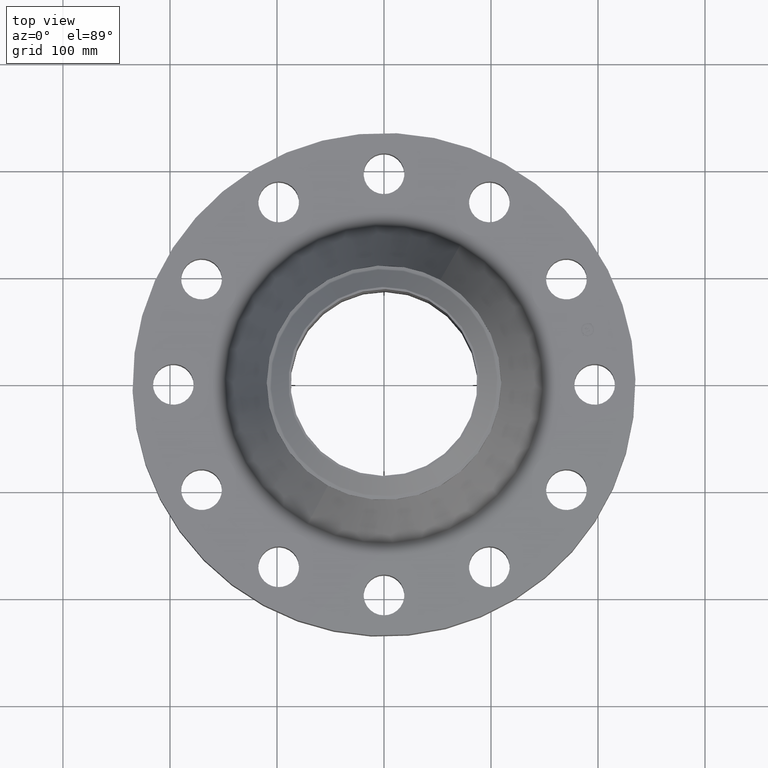
[diagram: clean part render]
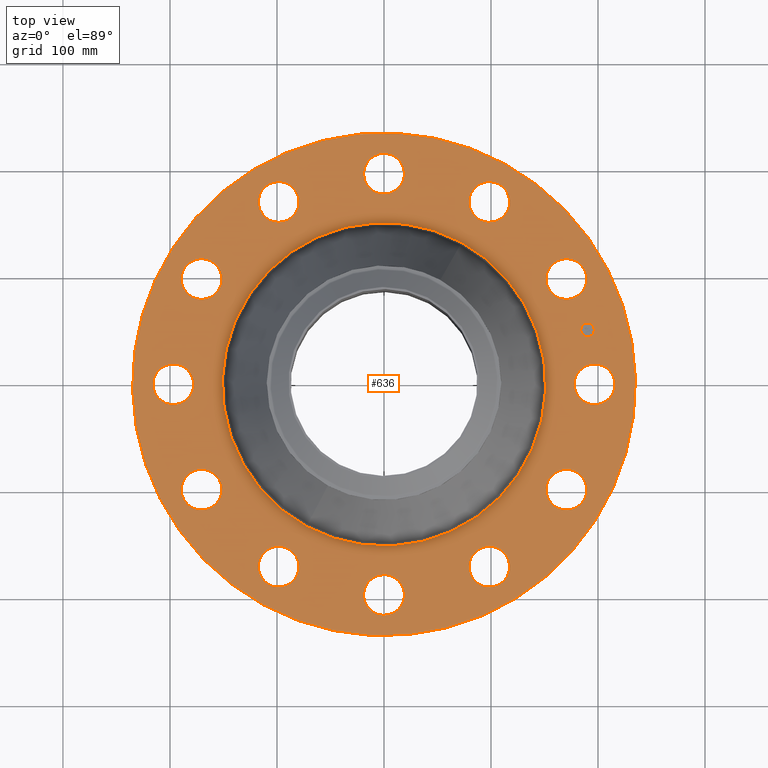
[diagram: same view with one face highlighted and labeled with its STEP entity id]
A machine part, top view. The second image highlights one B-rep face of the part: STEP entity #636.
In plain terms, the highlighted planar face has unit normal (0, 0, -1).
Its self-contained STEP definition (entity closure, byte-faithful):
#65=AXIS2_PLACEMENT_3D('Circle Axis2P3D',#63,#64,$) ;
#378=AXIS2_PLACEMENT_3D('Plane Axis2P3D',#375,#376,#377) ;
#382=AXIS2_PLACEMENT_3D('Circle Axis2P3D',#380,#381,$) ;
#391=AXIS2_PLACEMENT_3D('Circle Axis2P3D',#389,#390,$) ;
#404=AXIS2_PLACEMENT_3D('Circle Axis2P3D',#402,#403,$) ;
#413=AXIS2_PLACEMENT_3D('Circle Axis2P3D',#411,#412,$) ;
#422=AXIS2_PLACEMENT_3D('Circle Axis2P3D',#420,#421,$) ;
#431=AXIS2_PLACEMENT_3D('Circle Axis2P3D',#429,#430,$) ;
#440=AXIS2_PLACEMENT_3D('Circle Axis2P3D',#438,#439,$) ;
#449=AXIS2_PLACEMENT_3D('Circle Axis2P3D',#447,#448,$) ;
#458=AXIS2_PLACEMENT_3D('Circle Axis2P3D',#456,#457,$) ;
#467=AXIS2_PLACEMENT_3D('Circle Axis2P3D',#465,#466,$) ;
#476=AXIS2_PLACEMENT_3D('Circle Axis2P3D',#474,#475,$) ;
#485=AXIS2_PLACEMENT_3D('Circle Axis2P3D',#483,#484,$) ;
#494=AXIS2_PLACEMENT_3D('Circle Axis2P3D',#492,#493,$) ;
#503=AXIS2_PLACEMENT_3D('Circle Axis2P3D',#501,#502,$) ;
#512=AXIS2_PLACEMENT_3D('Circle Axis2P3D',#510,#511,$) ;
#521=AXIS2_PLACEMENT_3D('Circle Axis2P3D',#519,#520,$) ;
#530=AXIS2_PLACEMENT_3D('Circle Axis2P3D',#528,#529,$) ;
#539=AXIS2_PLACEMENT_3D('Circle Axis2P3D',#537,#538,$) ;
#548=AXIS2_PLACEMENT_3D('Circle Axis2P3D',#546,#547,$) ;
#557=AXIS2_PLACEMENT_3D('Circle Axis2P3D',#555,#556,$) ;
#566=AXIS2_PLACEMENT_3D('Circle Axis2P3D',#564,#565,$) ;
#575=AXIS2_PLACEMENT_3D('Circle Axis2P3D',#573,#574,$) ;
#584=AXIS2_PLACEMENT_3D('Circle Axis2P3D',#582,#583,$) ;
#593=AXIS2_PLACEMENT_3D('Circle Axis2P3D',#591,#592,$) ;
#602=AXIS2_PLACEMENT_3D('Circle Axis2P3D',#600,#601,$) ;
#611=AXIS2_PLACEMENT_3D('Circle Axis2P3D',#609,#610,$) ;
#620=AXIS2_PLACEMENT_3D('Circle Axis2P3D',#618,#619,$) ;
#629=AXIS2_PLACEMENT_3D('Circle Axis2P3D',#627,#628,$) ;
#46=CARTESIAN_POINT('Vertex',(7.09181307861,0.359569153955,2.5)) ;
#60=CARTESIAN_POINT('Vertex',(8.40818692145,-0.359569153955,2.5)) ;
#63=CARTESIAN_POINT('Axis2P3D Location',(7.75000000003,0.,2.5)) ;
#94=CARTESIAN_POINT('Control Point',(8.40818692145,-0.359569153955,2.5)) ;
#95=CARTESIAN_POINT('Control Point',(8.35170593082,-0.462956913806,2.5)) ;
#96=CARTESIAN_POINT('Control Point',(8.27492480102,-0.555254657081,2.5)) ;
#97=CARTESIAN_POINT('Control Point',(8.18073066337,-0.631129841292,2.5)) ;
#98=CARTESIAN_POINT('Control Point',(7.96766718853,-0.741858414487,2.5)) ;
#99=CARTESIAN_POINT('Control Point',(7.72855355312,-0.763802219702,2.5)) ;
#100=CARTESIAN_POINT('Control Point',(7.60829638235,-0.750848763496,2.5)) ;
#101=CARTESIAN_POINT('Control Point',(7.3793408295,-0.678487060596,2.5)) ;
#102=CARTESIAN_POINT('Control Point',(7.19474534295,-0.524924800992,2.50000000001)) ;
#103=CARTESIAN_POINT('Control Point',(7.11887015874,-0.430730663336,2.50000000001)) ;
#104=CARTESIAN_POINT('Control Point',(7.00814158554,-0.217667188504,2.50000000001)) ;
#105=CARTESIAN_POINT('Control Point',(6.98619778033,0.0214464469131,2.50000000001)) ;
#106=CARTESIAN_POINT('Control Point',(6.99915123653,0.141703617676,2.50000000001)) ;
#107=CARTESIAN_POINT('Control Point',(7.03533208798,0.256181394104,2.50000000001)) ;
#108=CARTESIAN_POINT('Control Point',(7.09181307861,0.359569153955,2.50000000001)) ;
#375=CARTESIAN_POINT('Axis2P3D Location',(0.,9.25000000004,2.50000000001)) ;
#380=CARTESIAN_POINT('Axis2P3D Location',(0.,-3.99918068914E-012,2.50000000001)) ;
#384=CARTESIAN_POINT('Vertex',(4.43468623211,8.11763869752,2.49999999999)) ;
#386=CARTESIAN_POINT('Vertex',(-4.43468623211,-8.11763869752,2.49999999999)) ;
#389=CARTESIAN_POINT('Axis2P3D Location',(0.,-3.99918068914E-012,2.50000000001)) ;
#402=CARTESIAN_POINT('Axis2P3D Location',(-1.1189649382E-015,-3.99918068914E-012,2.50000000001)) ;
#406=CARTESIAN_POINT('Vertex',(-2.85211672578,-5.22076464744,2.50000000001)) ;
#408=CARTESIAN_POINT('Vertex',(2.85211672579,5.22076464744,2.50000000001)) ;
#411=CARTESIAN_POINT('Axis2P3D Location',(1.1189649382E-015,-3.99918068914E-012,2.50000000001)) ;
#420=CARTESIAN_POINT('Axis2P3D Location',(6.71169687938,-3.87500000004,2.50000000001)) ;
#424=CARTESIAN_POINT('Vertex',(7.10191889681,-4.51548948246,2.50000000001)) ;
#426=CARTESIAN_POINT('Vertex',(6.32147486195,-3.23451051757,2.5)) ;
#429=CARTESIAN_POINT('Axis2P3D Location',(6.71169687938,-3.87500000004,2.50000000001)) ;
#438=CARTESIAN_POINT('Axis2P3D Location',(3.87499999999,-6.71169687939,2.50000000001)) ;
#442=CARTESIAN_POINT('Vertex',(3.89269743899,-7.46148805076,2.50000000001)) ;
#444=CARTESIAN_POINT('Vertex',(3.85730256105,-5.96190570799,2.5)) ;
#447=CARTESIAN_POINT('Axis2P3D Location',(3.87499999999,-6.71169687939,2.50000000001)) ;
#456=CARTESIAN_POINT('Axis2P3D Location',(1.281158906E-011,-7.75000000003,2.50000000001)) ;
#460=CARTESIAN_POINT('Vertex',(-0.359569153955,-8.40818692145,2.5)) ;
#462=CARTESIAN_POINT('Vertex',(0.359569153955,-7.09181307861,2.5)) ;
#465=CARTESIAN_POINT('Axis2P3D Location',(-1.281158906E-011,-7.75000000002,2.50000000001)) ;
#474=CARTESIAN_POINT('Axis2P3D Location',(-3.87500000003,-6.71169687936,2.50000000001)) ;
#478=CARTESIAN_POINT('Vertex',(-4.51548948246,-7.10191889674,2.50000000001)) ;
#480=CARTESIAN_POINT('Vertex',(-3.23451051757,-6.32147486195,2.5)) ;
#483=CARTESIAN_POINT('Axis2P3D Location',(-3.87500000001,-6.71169687939,2.50000000001)) ;
#492=CARTESIAN_POINT('Axis2P3D Location',(-6.71169687939,-3.875,2.50000000001)) ;
#496=CARTESIAN_POINT('Vertex',(-7.46148805075,-3.892697439,2.50000000001)) ;
#498=CARTESIAN_POINT('Vertex',(-5.96190570799,-3.85730256105,2.5)) ;
#501=CARTESIAN_POINT('Axis2P3D Location',(-6.71169687939,-3.875,2.50000000001)) ;
#510=CARTESIAN_POINT('Axis2P3D Location',(-7.75000000003,-1.68113292316E-011,2.50000000001)) ;
#514=CARTESIAN_POINT('Vertex',(-8.40818692145,0.359569153955,2.5)) ;
#516=CARTESIAN_POINT('Vertex',(-7.09181307861,-0.359569153955,2.5)) ;
#519=CARTESIAN_POINT('Axis2P3D Location',(-7.75000000002,8.8129678533E-012,2.50000000001)) ;
#528=CARTESIAN_POINT('Axis2P3D Location',(-6.71169687938,3.87500000003,2.50000000001)) ;
#532=CARTESIAN_POINT('Vertex',(-7.10191889681,4.51548948246,2.50000000001)) ;
#534=CARTESIAN_POINT('Vertex',(-6.32147486195,3.23451051757,2.5)) ;
#537=CARTESIAN_POINT('Axis2P3D Location',(-6.71169687935,3.87500000005,2.50000000001)) ;
#546=CARTESIAN_POINT('Axis2P3D Location',(-3.87499999999,6.71169687939,2.50000000001)) ;
#550=CARTESIAN_POINT('Vertex',(-3.89269743899,7.46148805075,2.50000000001)) ;
#552=CARTESIAN_POINT('Vertex',(-3.85730256105,5.96190570799,2.5)) ;
#555=CARTESIAN_POINT('Axis2P3D Location',(-3.87499999999,6.71169687939,2.50000000001)) ;
#564=CARTESIAN_POINT('Axis2P3D Location',(-4.36652988483E-011,7.75000000004,2.50000000001)) ;
#568=CARTESIAN_POINT('Vertex',(0.359569153955,8.40818692145,2.5)) ;
#570=CARTESIAN_POINT('Vertex',(-0.359569153955,7.09181307861,2.5)) ;
#573=CARTESIAN_POINT('Axis2P3D Location',(1.281158906E-011,7.75000000001,2.50000000001)) ;
#582=CARTESIAN_POINT('Axis2P3D Location',(3.87500000004,6.71169687937,2.50000000001)) ;
#586=CARTESIAN_POINT('Vertex',(4.51548948246,7.1019188968,2.50000000001)) ;
#588=CARTESIAN_POINT('Vertex',(3.23451051757,6.32147486195,2.5)) ;
#591=CARTESIAN_POINT('Axis2P3D Location',(3.87500000004,6.71169687937,2.50000000001)) ;
#600=CARTESIAN_POINT('Axis2P3D Location',(6.71169687939,3.87499999999,2.50000000001)) ;
#604=CARTESIAN_POINT('Vertex',(7.46148805075,3.89269743899,2.50000000001)) ;
#606=CARTESIAN_POINT('Vertex',(5.96190570799,3.85730256105,2.5)) ;
#609=CARTESIAN_POINT('Axis2P3D Location',(6.71169687939,3.87499999999,2.50000000001)) ;
#618=CARTESIAN_POINT('Axis2P3D Location',(7.48592515377,2.00584759954,2.50000000001)) ;
#622=CARTESIAN_POINT('Vertex',(7.42186744008,2.24491424154,2.50000000001)) ;
#624=CARTESIAN_POINT('Vertex',(7.54998286746,1.76678095753,2.50000000001)) ;
#627=CARTESIAN_POINT('Axis2P3D Location',(7.48592515379,2.00584759954,2.50000000001)) ;
#64=DIRECTION('Axis2P3D Direction',(0.,-0.,-0.0393700787402)) ;
#376=DIRECTION('Axis2P3D Direction',(0.,0.,-0.0393700787402)) ;
#377=DIRECTION('Axis2P3D XDirection',(0.0393700787402,0.,0.)) ;
#381=DIRECTION('Axis2P3D Direction',(0.,0.,-0.0393700787402)) ;
#390=DIRECTION('Axis2P3D Direction',(0.,0.,-0.0393700787402)) ;
#403=DIRECTION('Axis2P3D Direction',(0.,0.,-0.0393700787402)) ;
#412=DIRECTION('Axis2P3D Direction',(0.,0.,-0.0393700787402)) ;
#421=DIRECTION('Axis2P3D Direction',(0.,0.,-0.0393700787402)) ;
#430=DIRECTION('Axis2P3D Direction',(0.,0.,-0.0393700787402)) ;
#439=DIRECTION('Axis2P3D Direction',(0.,0.,-0.0393700787402)) ;
#448=DIRECTION('Axis2P3D Direction',(0.,0.,-0.0393700787402)) ;
#457=DIRECTION('Axis2P3D Direction',(0.,0.,-0.0393700787402)) ;
#466=DIRECTION('Axis2P3D Direction',(0.,0.,-0.0393700787402)) ;
#475=DIRECTION('Axis2P3D Direction',(0.,0.,-0.0393700787402)) ;
#484=DIRECTION('Axis2P3D Direction',(0.,0.,-0.0393700787402)) ;
#493=DIRECTION('Axis2P3D Direction',(0.,0.,-0.0393700787402)) ;
#502=DIRECTION('Axis2P3D Direction',(0.,0.,-0.0393700787402)) ;
#511=DIRECTION('Axis2P3D Direction',(0.,0.,-0.0393700787402)) ;
#520=DIRECTION('Axis2P3D Direction',(0.,0.,-0.0393700787402)) ;
#529=DIRECTION('Axis2P3D Direction',(0.,0.,-0.0393700787402)) ;
#538=DIRECTION('Axis2P3D Direction',(0.,0.,-0.0393700787402)) ;
#547=DIRECTION('Axis2P3D Direction',(0.,0.,-0.0393700787402)) ;
#556=DIRECTION('Axis2P3D Direction',(0.,0.,-0.0393700787402)) ;
#565=DIRECTION('Axis2P3D Direction',(0.,0.,-0.0393700787402)) ;
#574=DIRECTION('Axis2P3D Direction',(0.,0.,-0.0393700787402)) ;
#583=DIRECTION('Axis2P3D Direction',(0.,0.,-0.0393700787402)) ;
#592=DIRECTION('Axis2P3D Direction',(0.,0.,-0.0393700787402)) ;
#601=DIRECTION('Axis2P3D Direction',(0.,0.,-0.0393700787402)) ;
#610=DIRECTION('Axis2P3D Direction',(0.,0.,-0.0393700787402)) ;
#619=DIRECTION('Axis2P3D Direction',(0.,0.,-0.0393700787402)) ;
#628=DIRECTION('Axis2P3D Direction',(0.,0.,-0.0393700787402)) ;
#395=ORIENTED_EDGE('',*,*,#388,.F.) ;
#396=ORIENTED_EDGE('',*,*,#393,.F.) ;
#399=ORIENTED_EDGE('',*,*,#67,.T.) ;
#400=ORIENTED_EDGE('',*,*,#109,.T.) ;
#417=ORIENTED_EDGE('',*,*,#410,.T.) ;
#418=ORIENTED_EDGE('',*,*,#415,.T.) ;
#435=ORIENTED_EDGE('',*,*,#428,.T.) ;
#436=ORIENTED_EDGE('',*,*,#433,.T.) ;
#453=ORIENTED_EDGE('',*,*,#446,.T.) ;
#454=ORIENTED_EDGE('',*,*,#451,.T.) ;
#471=ORIENTED_EDGE('',*,*,#464,.T.) ;
#472=ORIENTED_EDGE('',*,*,#469,.T.) ;
#489=ORIENTED_EDGE('',*,*,#482,.T.) ;
#490=ORIENTED_EDGE('',*,*,#487,.T.) ;
#507=ORIENTED_EDGE('',*,*,#500,.T.) ;
#508=ORIENTED_EDGE('',*,*,#505,.T.) ;
#525=ORIENTED_EDGE('',*,*,#518,.T.) ;
#526=ORIENTED_EDGE('',*,*,#523,.T.) ;
#543=ORIENTED_EDGE('',*,*,#536,.T.) ;
#544=ORIENTED_EDGE('',*,*,#541,.T.) ;
#561=ORIENTED_EDGE('',*,*,#554,.T.) ;
#562=ORIENTED_EDGE('',*,*,#559,.T.) ;
#579=ORIENTED_EDGE('',*,*,#572,.T.) ;
#580=ORIENTED_EDGE('',*,*,#577,.T.) ;
#597=ORIENTED_EDGE('',*,*,#590,.T.) ;
#598=ORIENTED_EDGE('',*,*,#595,.T.) ;
#615=ORIENTED_EDGE('',*,*,#608,.T.) ;
#616=ORIENTED_EDGE('',*,*,#613,.T.) ;
#633=ORIENTED_EDGE('',*,*,#626,.T.) ;
#634=ORIENTED_EDGE('',*,*,#631,.T.) ;
#401=FACE_BOUND('',#398,.T.) ;
#419=FACE_BOUND('',#416,.T.) ;
#437=FACE_BOUND('',#434,.T.) ;
#455=FACE_BOUND('',#452,.T.) ;
#473=FACE_BOUND('',#470,.T.) ;
#491=FACE_BOUND('',#488,.T.) ;
#509=FACE_BOUND('',#506,.T.) ;
#527=FACE_BOUND('',#524,.T.) ;
#545=FACE_BOUND('',#542,.T.) ;
#563=FACE_BOUND('',#560,.T.) ;
#581=FACE_BOUND('',#578,.T.) ;
#599=FACE_BOUND('',#596,.T.) ;
#617=FACE_BOUND('',#614,.T.) ;
#635=FACE_BOUND('',#632,.T.) ;
#636=ADVANCED_FACE('PartBody',(#397,#401,#419,#437,#455,#473,#491,#509,#527,#545,#563,#581,#599,#617,#635),#379,.F.) ;
#93=B_SPLINE_CURVE_WITH_KNOTS('',5,(#94,#95,#96,#97,#98,#99,#100,#101,#102,#103,#104,#105,#106,#107,#108),.UNSPECIFIED.,.F.,.U.,(6,3,3,3,6),(-29.9236700256,-14.9618350128,-1.7763568394E-015,14.9618350128,29.9236700256),.UNSPECIFIED.) ;
#66=CIRCLE('generated circle',#65,0.750000000003) ;
#383=CIRCLE('generated circle',#382,9.25000000003) ;
#392=CIRCLE('generated circle',#391,9.25000000003) ;
#405=CIRCLE('generated circle',#404,5.94902961174) ;
#414=CIRCLE('generated circle',#413,5.94902961174) ;
#423=CIRCLE('generated circle',#422,0.749999999989) ;
#432=CIRCLE('generated circle',#431,0.749999999989) ;
#441=CIRCLE('generated circle',#440,0.750000000002) ;
#450=CIRCLE('generated circle',#449,0.750000000002) ;
#459=CIRCLE('generated circle',#458,0.750000000009) ;
#468=CIRCLE('generated circle',#467,0.750000000009) ;
#477=CIRCLE('generated circle',#476,0.749999999969) ;
#486=CIRCLE('generated circle',#485,0.749999999969) ;
#495=CIRCLE('generated circle',#494,0.750000000002) ;
#504=CIRCLE('generated circle',#503,0.750000000002) ;
#513=CIRCLE('generated circle',#512,0.750000000009) ;
#522=CIRCLE('generated circle',#521,0.750000000009) ;
#531=CIRCLE('generated circle',#530,0.749999999989) ;
#540=CIRCLE('generated circle',#539,0.749999999989) ;
#549=CIRCLE('generated circle',#548,0.750000000002) ;
#558=CIRCLE('generated circle',#557,0.750000000002) ;
#567=CIRCLE('generated circle',#566,0.750000000009) ;
#576=CIRCLE('generated circle',#575,0.750000000009) ;
#585=CIRCLE('generated circle',#584,0.749999999989) ;
#594=CIRCLE('generated circle',#593,0.749999999989) ;
#603=CIRCLE('generated circle',#602,0.750000000002) ;
#612=CIRCLE('generated circle',#611,0.750000000002) ;
#621=CIRCLE('generated circle',#620,0.247500000006) ;
#630=CIRCLE('generated circle',#629,0.247500000006) ;
#67=EDGE_CURVE('',#47,#61,#66,.T.) ;
#109=EDGE_CURVE('',#61,#47,#93,.T.) ;
#388=EDGE_CURVE('',#385,#387,#383,.T.) ;
#393=EDGE_CURVE('',#387,#385,#392,.T.) ;
#410=EDGE_CURVE('',#407,#409,#405,.T.) ;
#415=EDGE_CURVE('',#409,#407,#414,.T.) ;
#428=EDGE_CURVE('',#425,#427,#423,.T.) ;
#433=EDGE_CURVE('',#427,#425,#432,.T.) ;
#446=EDGE_CURVE('',#443,#445,#441,.T.) ;
#451=EDGE_CURVE('',#445,#443,#450,.T.) ;
#464=EDGE_CURVE('',#461,#463,#459,.T.) ;
#469=EDGE_CURVE('',#463,#461,#468,.T.) ;
#482=EDGE_CURVE('',#479,#481,#477,.T.) ;
#487=EDGE_CURVE('',#481,#479,#486,.T.) ;
#500=EDGE_CURVE('',#497,#499,#495,.T.) ;
#505=EDGE_CURVE('',#499,#497,#504,.T.) ;
#518=EDGE_CURVE('',#515,#517,#513,.T.) ;
#523=EDGE_CURVE('',#517,#515,#522,.T.) ;
#536=EDGE_CURVE('',#533,#535,#531,.T.) ;
#541=EDGE_CURVE('',#535,#533,#540,.T.) ;
#554=EDGE_CURVE('',#551,#553,#549,.T.) ;
#559=EDGE_CURVE('',#553,#551,#558,.T.) ;
#572=EDGE_CURVE('',#569,#571,#567,.T.) ;
#577=EDGE_CURVE('',#571,#569,#576,.T.) ;
#590=EDGE_CURVE('',#587,#589,#585,.T.) ;
#595=EDGE_CURVE('',#589,#587,#594,.T.) ;
#608=EDGE_CURVE('',#605,#607,#603,.T.) ;
#613=EDGE_CURVE('',#607,#605,#612,.T.) ;
#626=EDGE_CURVE('',#623,#625,#621,.T.) ;
#631=EDGE_CURVE('',#625,#623,#630,.T.) ;
#394=EDGE_LOOP('',(#395,#396)) ;
#398=EDGE_LOOP('',(#399,#400)) ;
#416=EDGE_LOOP('',(#417,#418)) ;
#434=EDGE_LOOP('',(#435,#436)) ;
#452=EDGE_LOOP('',(#453,#454)) ;
#470=EDGE_LOOP('',(#471,#472)) ;
#488=EDGE_LOOP('',(#489,#490)) ;
#506=EDGE_LOOP('',(#507,#508)) ;
#524=EDGE_LOOP('',(#525,#526)) ;
#542=EDGE_LOOP('',(#543,#544)) ;
#560=EDGE_LOOP('',(#561,#562)) ;
#578=EDGE_LOOP('',(#579,#580)) ;
#596=EDGE_LOOP('',(#597,#598)) ;
#614=EDGE_LOOP('',(#615,#616)) ;
#632=EDGE_LOOP('',(#633,#634)) ;
#397=FACE_OUTER_BOUND('',#394,.T.) ;
#379=PLANE('',#378) ;
#47=VERTEX_POINT('',#46) ;
#61=VERTEX_POINT('',#60) ;
#385=VERTEX_POINT('',#384) ;
#387=VERTEX_POINT('',#386) ;
#407=VERTEX_POINT('',#406) ;
#409=VERTEX_POINT('',#408) ;
#425=VERTEX_POINT('',#424) ;
#427=VERTEX_POINT('',#426) ;
#443=VERTEX_POINT('',#442) ;
#445=VERTEX_POINT('',#444) ;
#461=VERTEX_POINT('',#460) ;
#463=VERTEX_POINT('',#462) ;
#479=VERTEX_POINT('',#478) ;
#481=VERTEX_POINT('',#480) ;
#497=VERTEX_POINT('',#496) ;
#499=VERTEX_POINT('',#498) ;
#515=VERTEX_POINT('',#514) ;
#517=VERTEX_POINT('',#516) ;
#533=VERTEX_POINT('',#532) ;
#535=VERTEX_POINT('',#534) ;
#551=VERTEX_POINT('',#550) ;
#553=VERTEX_POINT('',#552) ;
#569=VERTEX_POINT('',#568) ;
#571=VERTEX_POINT('',#570) ;
#587=VERTEX_POINT('',#586) ;
#589=VERTEX_POINT('',#588) ;
#605=VERTEX_POINT('',#604) ;
#607=VERTEX_POINT('',#606) ;
#623=VERTEX_POINT('',#622) ;
#625=VERTEX_POINT('',#624) ;